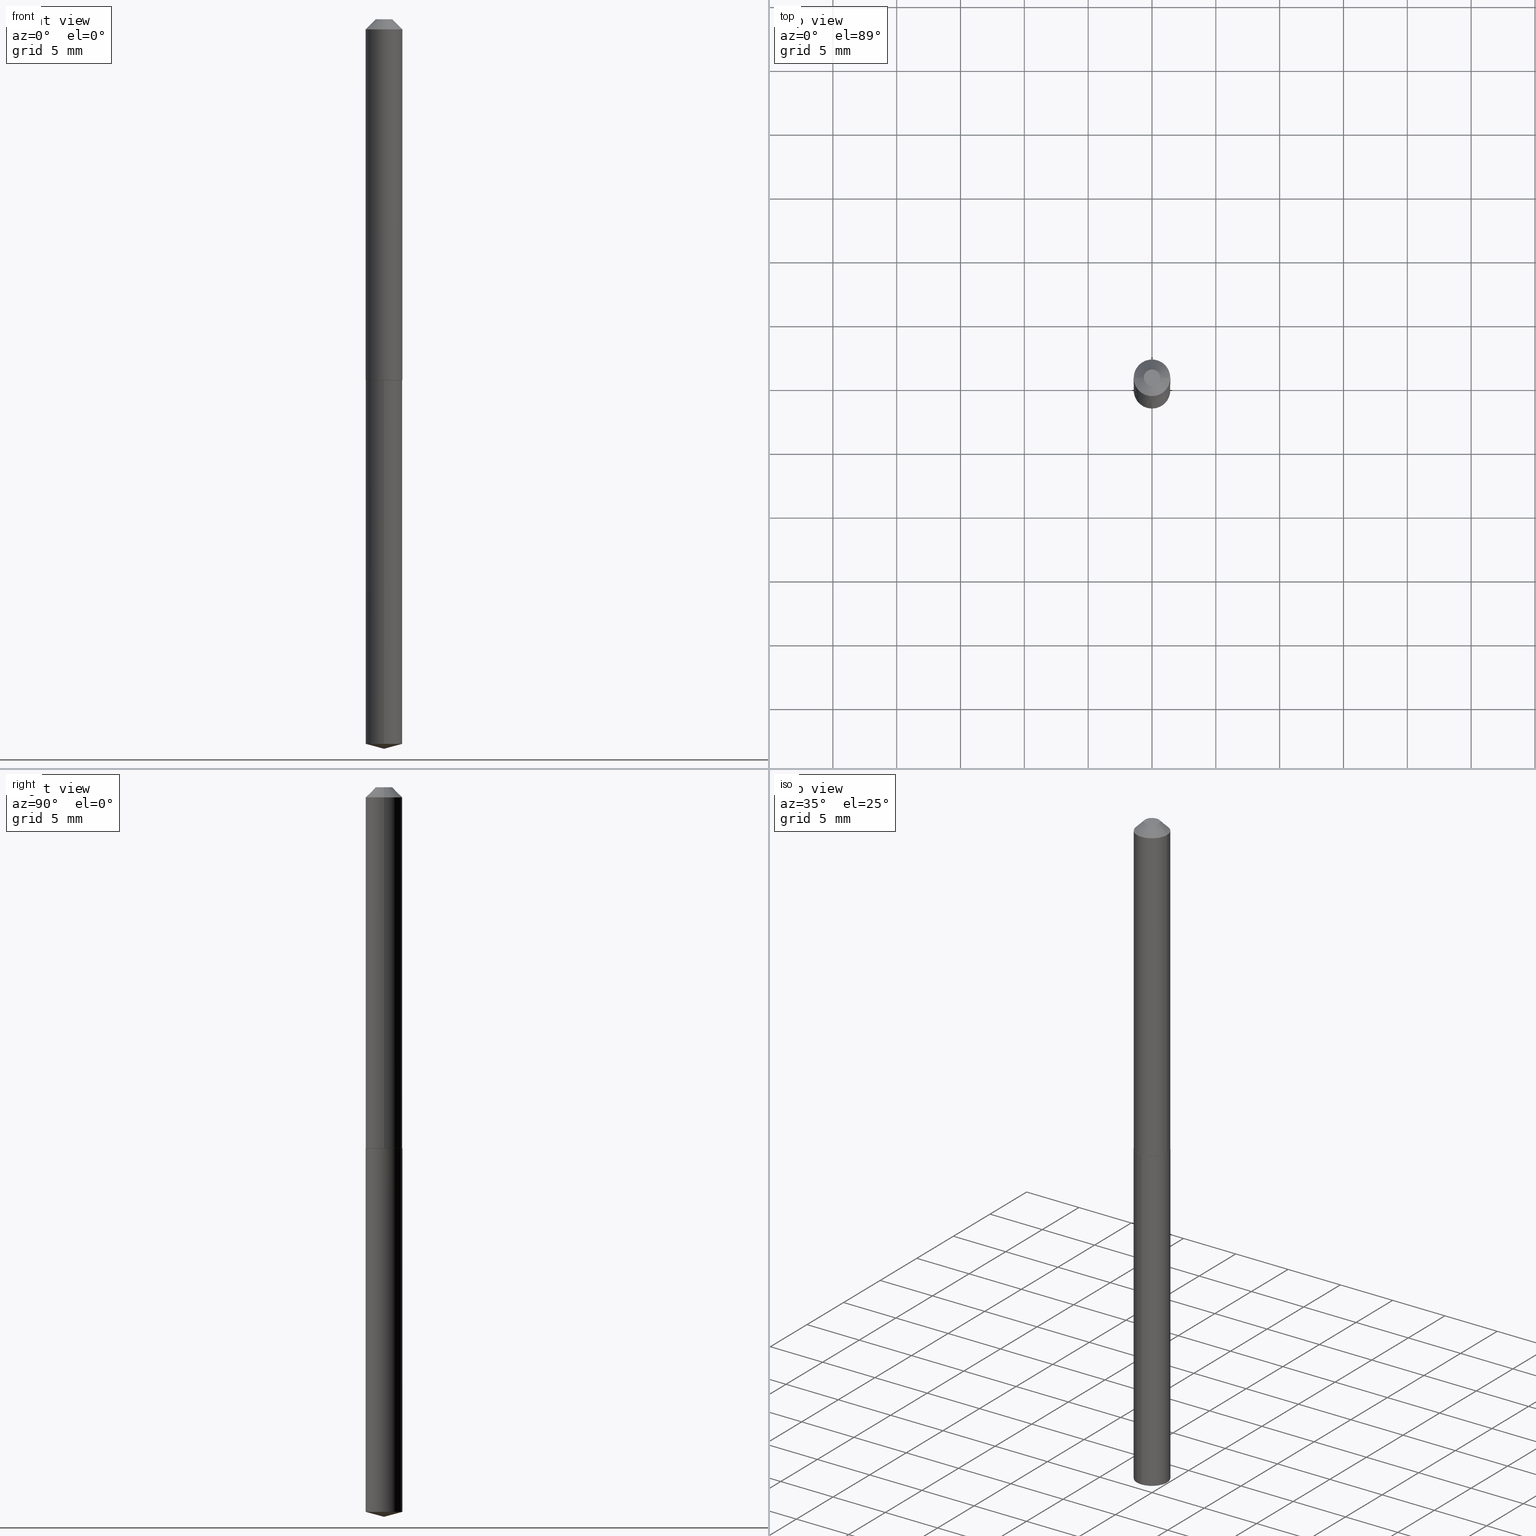
[diagram: canonical four-view strip — front | top / right | iso, engineering-drawing reading convention]
A machine part, canonical four-view strip (front | top / right | iso — engineering-drawing reading convention). The complete STEP part file that produces these views, byte-faithful:
ISO-10303-21;
HEADER;
FILE_DESCRIPTION (( 'STEP AP203' ),
    '1' );
FILE_NAME ('53033.STEP',
    '2024-04-22T19:03:35',
    ( '' ),
    ( '' ),
    'SwSTEP 2.0',
    'SolidWorks 2023',
    '' );
FILE_SCHEMA (( 'CONFIG_CONTROL_DESIGN' ));
ENDSEC;

DATA;
#1 = DIRECTION ( 'NONE',  ( 1.000000000000000000, -6.982962677686265922E-15, 0.000000000000000000 ) ) ;
#2 = VECTOR ( 'NONE', #298, 39.37007874015748143 ) ;
#3 = ORIENTED_EDGE ( 'NONE', *, *, #121, .F. ) ;
#4 = EDGE_CURVE ( 'NONE', #250, #380, #191, .T. ) ;
#5 = PERSON_AND_ORGANIZATION_ROLE ( 'design_owner' ) ;
#6 = ORIENTED_EDGE ( 'NONE', *, *, #355, .T. ) ;
#7 = AXIS2_PLACEMENT_3D ( 'NONE', #257, #201, #376 ) ;
#8 = CIRCLE ( 'NONE', #133, 0.05600000000000002892 ) ;
#9 = DIRECTION ( 'NONE',  ( -2.445468806185136597E-29, 3.491481338843145583E-15, 1.000000000000000000 ) ) ;
#10 = CARTESIAN_POINT ( 'NONE',  ( 7.642090019328602662E-31, -1.091087918388490267E-16, -0.03125000000000020817 ) ) ;
#11 = CC_DESIGN_DATE_AND_TIME_ASSIGNMENT ( #239, #315, ( #313 ) ) ;
#12 = ORIENTED_EDGE ( 'NONE', *, *, #179, .F. ) ;
#13 = DIRECTION ( 'NONE',  ( -2.445478652372085799E-29, 3.491467238543024018E-15, 1.000000000000000000 ) ) ;
#14 = DIRECTION ( 'NONE',  ( 1.000000000000000000, 0.000000000000000000, 0.000000000000000000 ) ) ;
#15 = VECTOR ( 'NONE', #110, 39.37007874015748143 ) ;
#16 = ORIENTED_EDGE ( 'NONE', *, *, #93, .T. ) ;
#17 = EDGE_CURVE ( 'NONE', #155, #45, #329, .T. ) ;
#18 = APPROVAL_DATE_TIME ( #84, #162 ) ;
#19 = ORIENTED_EDGE ( 'NONE', *, *, #17, .F. ) ;
#20 = APPROVAL_STATUS ( 'not_yet_approved' ) ;
#21 = DIRECTION ( 'NONE',  ( -2.438088387897960049E-29, 3.491481338843145188E-15, 1.000000000000000000 ) ) ;
#22 = AXIS2_PLACEMENT_3D ( 'NONE', #56, #86, #206 ) ;
#23 = ORIENTED_EDGE ( 'NONE', *, *, #324, .F. ) ;
#24 = DIRECTION ( 'NONE',  ( -2.445468806185136597E-29, 3.491481338843145583E-15, 1.000000000000000000 ) ) ;
#25 = EDGE_CURVE ( 'NONE', #330, #221, #259, .T. ) ;
#26 = MANIFOLD_SOLID_BREP ( 'Body-Move/Copy2[1]', #125 ) ;
#27 = DIRECTION ( 'NONE',  ( 1.000000000000000000, -6.982962677686265133E-15, 0.000000000000000000 ) ) ;
#28 = CYLINDRICAL_SURFACE ( 'NONE', #364, 0.05650000000000000161 ) ;
#29 = CC_DESIGN_PERSON_AND_ORGANIZATION_ASSIGNMENT ( #80, #106, ( #313 ) ) ;
#30 = FACE_OUTER_BOUND ( 'NONE', #249, .T. ) ;
#31 = EDGE_CURVE ( 'NONE', #330, #250, #168, .T. ) ;
#32 = ORIENTED_EDGE ( 'NONE', *, *, #111, .F. ) ;
#33 = EDGE_LOOP ( 'NONE', ( #365, #23 ) ) ;
#34 = DIRECTION ( 'NONE',  ( -1.000000000000000000, 6.982962677686265922E-15, 0.000000000000000000 ) ) ;
#35 = ORIENTED_EDGE ( 'NONE', *, *, #355, .F. ) ;
#36 = PERSON ( 'UNSPECIFIED', 'UNSPECIFIED', 'UNSPECIFIED', ('UNSPECIFIED'), ('UNSPECIFIED'), ('UNSPECIFIED') ) ;
#37 = DIRECTION ( 'NONE',  ( 0.000000000000000000, 0.000000000000000000, 1.000000000000000000 ) ) ;
#38 = VERTEX_POINT ( 'NONE', #344 ) ;
#39 = APPROVAL_PERSON_ORGANIZATION ( #333, #162, #184 ) ;
#40 = DIRECTION ( 'NONE',  ( -2.445478652372085799E-29, 3.491467238543024018E-15, 1.000000000000000000 ) ) ;
#41 = EDGE_CURVE ( 'NONE', #94, #45, #75, .T. ) ;
#42 = ORIENTED_EDGE ( 'NONE', *, *, #189, .T. ) ;
#43 =( NAMED_UNIT ( * ) SI_UNIT ( $, .STERADIAN. ) SOLID_ANGLE_UNIT ( ) );
#44 = FACE_OUTER_BOUND ( 'NONE', #160, .T. ) ;
#45 = VERTEX_POINT ( 'NONE', #105 ) ;
#46 = ADVANCED_FACE ( 'NONE', ( #44 ), #165, .F. ) ;
#47 = DIRECTION ( 'NONE',  ( -6.982962677686265922E-15, -1.000000000000000000, 2.417564596163064711E-15 ) ) ;
#48 = COORDINATED_UNIVERSAL_TIME_OFFSET ( 5, 0, .BEHIND. ) ;
#49 = ORIENTED_EDGE ( 'NONE', *, *, #57, .F. ) ;
#50 = ORIENTED_EDGE ( 'NONE', *, *, #207, .T. ) ;
#51 = DATE_AND_TIME ( #326, #363 ) ;
#52 = ADVANCED_FACE ( 'NONE', ( #225 ), #134, .T. ) ;
#53 = APPROVAL_PERSON_ORGANIZATION ( #169, #349, #200 ) ;
#54 = FACE_OUTER_BOUND ( 'NONE', #64, .T. ) ;
#55 = FACE_OUTER_BOUND ( 'NONE', #258, .T. ) ;
#56 = CARTESIAN_POINT ( 'NONE',  ( 4.492253318864007917E-48, -6.413747168845486278E-34, -1.836970198721037058E-19 ) ) ;
#57 = EDGE_CURVE ( 'NONE', #250, #342, #321, .T. ) ;
#58 = DIRECTION ( 'NONE',  ( 2.445468806185136597E-29, -3.491481338843145583E-15, -1.000000000000000000 ) ) ;
#59 = EDGE_LOOP ( 'NONE', ( #229, #214, #12, #280 ) ) ;
#60 = AXIS2_PLACEMENT_3D ( 'NONE', #296, #182, #173 ) ;
#61 = DIRECTION ( 'NONE',  ( 6.982962677686265922E-15, 1.000000000000000000, -3.491467238543024018E-15 ) ) ;
#62 = VERTEX_POINT ( 'NONE', #79 ) ;
#63 = APPROVAL_STATUS ( 'not_yet_approved' ) ;
#64 = EDGE_LOOP ( 'NONE', ( #42, #195 ) ) ;
#65 = PRODUCT_DEFINITION ( 'UNKNOWN', '', #305, #341 ) ;
#66 = DIRECTION ( 'NONE',  ( 0.7071067811865451302, -7.319954787623248157E-15, -0.7071067811865499042 ) ) ;
#67 = ORIENTED_EDGE ( 'NONE', *, *, #332, .F. ) ;
#68 = VECTOR ( 'NONE', #142, 39.37007874015748143 ) ;
#69 = CARTESIAN_POINT ( 'NONE',  ( 2.720584046880964240E-29, -3.884272989462999268E-15, -1.112500000000000044 ) ) ;
#70 = FACE_OUTER_BOUND ( 'NONE', #33, .T. ) ;
#71 = DIRECTION ( 'NONE',  ( 1.000000000000000000, -6.982962677686265133E-15, 0.000000000000000000 ) ) ;
#72 = EDGE_CURVE ( 'NONE', #302, #62, #100, .T. ) ;
#73 = ORIENTED_EDGE ( 'NONE', *, *, #41, .F. ) ;
#74 = FACE_OUTER_BOUND ( 'NONE', #99, .T. ) ;
#75 = LINE ( 'NONE', #351, #68 ) ;
#76 = AXIS2_PLACEMENT_3D ( 'NONE', #281, #13, #252 ) ;
#77 = PERSON_AND_ORGANIZATION_ROLE ( 'creator' ) ;
#78 = LOCAL_TIME ( 15, 3, 35.00000000000000000, #230 ) ;
#79 = CARTESIAN_POINT ( 'NONE',  ( 4.014566457045111465E-16, 0.05649999999999218842, -2.234860870627642271 ) ) ;
#80 = PERSON_AND_ORGANIZATION ( #36, #92 ) ;
#81 = CARTESIAN_POINT ( 'NONE',  ( 2.720584046880964240E-29, -3.884272989462999268E-15, -1.112500000000000044 ) ) ;
#82 = CC_DESIGN_PERSON_AND_ORGANIZATION_ASSIGNMENT ( #323, #345, ( #65 ) ) ;
#83 = DIRECTION ( 'NONE',  ( -2.445478652372085799E-29, 3.491467238543024018E-15, 1.000000000000000000 ) ) ;
#84 = DATE_AND_TIME ( #294, #322 ) ;
#85 = CONICAL_SURFACE ( 'NONE', #300, 0.05650000000000000161, 0.7853981633974449483 ) ;
#86 = DIRECTION ( 'NONE',  ( -2.445468806185136597E-29, 3.491481338843145583E-15, 1.000000000000000000 ) ) ;
#87 = ADVANCED_FACE ( 'NONE', ( #70 ), #289, .F. ) ;
#88 = LINE ( 'NONE', #295, #245 ) ;
#89 = DIRECTION ( 'NONE',  ( -2.445478652372085799E-29, 3.491467238543024018E-15, 1.000000000000000000 ) ) ;
#90 = FACE_OUTER_BOUND ( 'NONE', #217, .T. ) ;
#91 = CONICAL_SURFACE ( 'NONE', #108, 0.05650000000000013345, 0.7853981633976532262 ) ;
#92 = ORGANIZATION ( 'UNSPECIFIED', 'UNSPECIFIED', '' ) ;
#93 = EDGE_CURVE ( 'NONE', #62, #94, #251, .T. ) ;
#94 = VERTEX_POINT ( 'NONE', #104 ) ;
#95 = LOCAL_TIME ( 15, 3, 35.00000000000000000, #48 ) ;
#96 = APPLICATION_PROTOCOL_DEFINITION ( 'international standard', 'config_control_design', 1994, #374 ) ;
#97 = ORIENTED_EDGE ( 'NONE', *, *, #248, .F. ) ;
#98 = CARTESIAN_POINT ( 'NONE',  ( 7.642090019328602662E-31, -1.091087918388490267E-16, -0.03125000000000020817 ) ) ;
#99 = EDGE_LOOP ( 'NONE', ( #299, #50, #303 ) ) ;
#100 = LINE ( 'NONE', #199, #158 ) ;
#101 = CIRCLE ( 'NONE', #212, 0.05650000000000000161 ) ;
#102 = PERSON_AND_ORGANIZATION ( #36, #92 ) ;
#103 = APPLICATION_CONTEXT ( 'configuration controlled 3d designs of mechanical parts and assemblies' ) ;
#104 = CARTESIAN_POINT ( 'NONE',  ( -3.945373912892193281E-16, -0.05650000000000779399, -2.234860870627641827 ) ) ;
#105 = CARTESIAN_POINT ( 'NONE',  ( -3.945373912892467903E-16, -0.05650000000000388045, -1.112999999999999767 ) ) ;
#106 = PERSON_AND_ORGANIZATION_ROLE ( 'classification_officer' ) ;
#107 = DIRECTION ( 'NONE',  ( -2.445468806185136597E-29, 3.491481338843145583E-15, 1.000000000000000000 ) ) ;
#108 = AXIS2_PLACEMENT_3D ( 'NONE', #241, #208, #268 ) ;
#109 = PERSON_AND_ORGANIZATION ( #36, #92 ) ;
#110 = DIRECTION ( 'NONE',  ( -2.445468806185136877E-29, 3.491481338843145188E-15, 1.000000000000000000 ) ) ;
#111 = EDGE_CURVE ( 'NONE', #342, #370, #353, .T. ) ;
#112 = CARTESIAN_POINT ( 'NONE',  ( -0.05650000000000000161, 2.854285994504250533E-16, -0.03125000000000020817 ) ) ;
#113 = CARTESIAN_POINT ( 'NONE',  ( 5.465293591335518507E-29, -7.802959206132187600E-15, -2.234860870627641827 ) ) ;
#114 = CALENDAR_DATE ( 2024, 22, 4 ) ;
#115 = ADVANCED_FACE ( 'NONE', ( #54 ), #117, .F. ) ;
#116 = CC_DESIGN_SECURITY_CLASSIFICATION ( #313, ( #305 ) ) ;
#117 = PLANE ( 'NONE',  #284 ) ;
#118 = CYLINDRICAL_SURFACE ( 'NONE', #381, 0.05650000000000006406 ) ;
#119 = CARTESIAN_POINT ( 'NONE',  ( 7.642090019328602662E-31, -1.091087918388490267E-16, -0.03125000000000020817 ) ) ;
#120 = AXIS2_PLACEMENT_3D ( 'NONE', #69, #9, #71 ) ;
#121 = EDGE_CURVE ( 'NONE', #312, #370, #388, .T. ) ;
#122 = ORIENTED_EDGE ( 'NONE', *, *, #324, .T. ) ;
#123 = ORIENTED_EDGE ( 'NONE', *, *, #179, .T. ) ;
#124 = CARTESIAN_POINT ( 'NONE',  ( 5.502326967837193257E-29, -7.855801286721804237E-15, -2.250000000000000000 ) ) ;
#125 = CLOSED_SHELL ( 'NONE', ( #172, #138, #386, #291, #115 ) ) ;
#126 = CONICAL_SURFACE ( 'NONE', #389, 0.05650000000000000161, 0.7853981633974449483 ) ;
#127 = DIRECTION ( 'NONE',  ( 2.445468806185136597E-29, -3.491481338843145583E-15, -1.000000000000000000 ) ) ;
#128 = ORIENTED_EDGE ( 'NONE', *, *, #248, .T. ) ;
#129 = CYLINDRICAL_SURFACE ( 'NONE', #150, 0.05650000000000000161 ) ;
#130 = ORIENTED_EDGE ( 'NONE', *, *, #205, .F. ) ;
#131 = CARTESIAN_POINT ( 'NONE',  ( 2.246126659432003959E-48, -3.206873584422743139E-34, -9.184850993605185290E-20 ) ) ;
#132 = PRODUCT_RELATED_PRODUCT_CATEGORY ( 'detail', '', ( #181 ) ) ;
#133 = AXIS2_PLACEMENT_3D ( 'NONE', #371, #228, #161 ) ;
#134 = CYLINDRICAL_SURFACE ( 'NONE', #307, 0.05650000000000006406 ) ;
#135 = CALENDAR_DATE ( 2024, 22, 4 ) ;
#136 = CARTESIAN_POINT ( 'NONE',  ( 0.000000000000000000, 0.000000000000000000, 0.000000000000000000 ) ) ;
#137 = SHAPE_DEFINITION_REPRESENTATION ( #190, #197 ) ;
#138 = ADVANCED_FACE ( 'NONE', ( #331 ), #238, .T. ) ;
#139 = ORIENTED_EDGE ( 'NONE', *, *, #317, .T. ) ;
#140 = AXIS2_PLACEMENT_3D ( 'NONE', #81, #231, #348 ) ;
#141 = VECTOR ( 'NONE', #175, 39.37007874015748854 ) ;
#142 = DIRECTION ( 'NONE',  ( -2.445478652372085799E-29, 3.491467238543024018E-15, 1.000000000000000000 ) ) ;
#143 = DIRECTION ( 'NONE',  ( -6.745023994389850177E-15, -0.9659258262890693114, 0.2588190451025172423 ) ) ;
#144 = EDGE_CURVE ( 'NONE', #221, #342, #384, .T. ) ;
#145 = CARTESIAN_POINT ( 'NONE',  ( 2.721806781284057041E-29, -3.886018730132420772E-15, -1.112999999999999989 ) ) ;
#146 = DIRECTION ( 'NONE',  ( -2.445468806185136597E-29, 3.491481338843145583E-15, 1.000000000000000000 ) ) ;
#147 = DIRECTION ( 'NONE',  ( -6.982962677686265922E-15, -1.000000000000000000, 2.417564596163064711E-15 ) ) ;
#148 = ADVANCED_FACE ( 'NONE', ( #55 ), #383, .T. ) ;
#149 = CIRCLE ( 'NONE', #22, 0.02524999999999999814 ) ;
#150 = AXIS2_PLACEMENT_3D ( 'NONE', #340, #40, #276 ) ;
#151 = MANIFOLD_SOLID_BREP ( 'Body-Move/Copy2[2]', #357 ) ;
#152 = ORIENTED_EDGE ( 'NONE', *, *, #25, .T. ) ;
#153 = CC_DESIGN_PERSON_AND_ORGANIZATION_ASSIGNMENT ( #233, #350, ( #305 ) ) ;
#154 = DIRECTION ( 'NONE',  ( -2.445468806185136597E-29, 3.491481338843145583E-15, 1.000000000000000000 ) ) ;
#155 = VERTEX_POINT ( 'NONE', #177 ) ;
#156 = LINE ( 'NONE', #185, #266 ) ;
#157 = CIRCLE ( 'NONE', #362, 0.05650000000000000161 ) ;
#158 = VECTOR ( 'NONE', #255, 39.37007874015748854 ) ;
#159 = FACE_OUTER_BOUND ( 'NONE', #187, .T. ) ;
#160 = EDGE_LOOP ( 'NONE', ( #183, #382 ) ) ;
#161 = DIRECTION ( 'NONE',  ( 1.000000000000000000, -6.982962677686268288E-15, 0.000000000000000000 ) ) ;
#162 = APPROVAL ( #63, 'UNSPECIFIED' ) ;
#163 = DIRECTION ( 'NONE',  ( -2.445478652372085799E-29, 3.491467238543024018E-15, 1.000000000000000000 ) ) ;
#164 = CARTESIAN_POINT ( 'NONE',  ( -9.077637109223210617E-28, 1.296035231197632230E-13, 37.12007874015748143 ) ) ;
#165 = PLANE ( 'NONE',  #232 ) ;
#166 = CIRCLE ( 'NONE', #120, 0.05650000000000013345 ) ;
#167 = AXIS2_PLACEMENT_3D ( 'NONE', #164, #283, #218 ) ;
#168 = LINE ( 'NONE', #261, #186 ) ;
#169 = PERSON_AND_ORGANIZATION ( #36, #92 ) ;
#170 = DIRECTION ( 'NONE',  ( -1.000000000000000000, 6.982962677686265922E-15, -4.876176775795935793E-29 ) ) ;
#171 = CARTESIAN_POINT ( 'NONE',  ( 2.721806781284057041E-29, -3.886018730132420772E-15, -1.112999999999999989 ) ) ;
#172 = ADVANCED_FACE ( 'NONE', ( #30 ), #28, .T. ) ;
#173 = DIRECTION ( 'NONE',  ( -6.982962677686268288E-15, -1.000000000000000000, 3.510303681827540642E-15 ) ) ;
#174 = CARTESIAN_POINT ( 'NONE',  ( -0.05600000000000002892, -3.485465570932653113E-15, -1.112999999999999767 ) ) ;
#175 = DIRECTION ( 'NONE',  ( -0.7071067811866923458, 7.493145998870876386E-15, 0.7071067811864025776 ) ) ;
#176 = AXIS2_PLACEMENT_3D ( 'NONE', #119, #146, #1 ) ;
#177 = CARTESIAN_POINT ( 'NONE',  ( 4.014566457045113930E-16, 0.05649999999999611583, -1.113000000000000211 ) ) ;
#178 = CC_DESIGN_PERSON_AND_ORGANIZATION_ASSIGNMENT ( #102, #5, ( #181 ) ) ;
#179 = EDGE_CURVE ( 'NONE', #380, #370, #188, .T. ) ;
#180 = EDGE_LOOP ( 'NONE', ( #152, #306, #49, #274 ) ) ;
#181 = PRODUCT ( '53033', '53033', '', ( #343 ) ) ;
#182 = DIRECTION ( 'NONE',  ( -2.445478652372085799E-29, 3.491467238543024018E-15, 1.000000000000000000 ) ) ;
#183 = ORIENTED_EDGE ( 'NONE', *, *, #205, .T. ) ;
#184 = APPROVAL_ROLE ( '' ) ;
#185 = CARTESIAN_POINT ( 'NONE',  ( 0.05650000000000000161, -4.967269287129405456E-16, -0.03125000000000020817 ) ) ;
#186 = VECTOR ( 'NONE', #316, 39.37007874015748854 ) ;
#187 = EDGE_LOOP ( 'NONE', ( #227, #6, #123, #3 ) ) ;
#188 = CIRCLE ( 'NONE', #176, 0.05650000000000000161 ) ;
#189 = EDGE_CURVE ( 'NONE', #45, #155, #101, .T. ) ;
#190 = PRODUCT_DEFINITION_SHAPE ( 'NONE', 'NONE',  #65 ) ;
#191 = LINE ( 'NONE', #292, #15 ) ;
#192 = CARTESIAN_POINT ( 'NONE',  ( -0.05650000000000000161, -1.595234244946466237E-15, -0.03125000000000020817 ) ) ;
#193 = EDGE_LOOP ( 'NONE', ( #32, #139, #278, #67 ) ) ;
#194 = DIRECTION ( 'NONE',  ( -1.000000000000000000, 6.982962677686265922E-15, 0.000000000000000000 ) ) ;
#195 = ORIENTED_EDGE ( 'NONE', *, *, #17, .T. ) ;
#196 = AXIS2_PLACEMENT_3D ( 'NONE', #98, #220, #335 ) ;
#197 = ADVANCED_BREP_SHAPE_REPRESENTATION ( '53033', ( #26, #151, #226 ), #211 ) ;
#198 = DATE_AND_TIME ( #203, #95 ) ;
#199 = CARTESIAN_POINT ( 'NONE',  ( 5.502327160028780886E-29, -7.855801286721804237E-15, -2.250000000000000000 ) ) ;
#200 = APPROVAL_ROLE ( '' ) ;
#201 = DIRECTION ( 'NONE',  ( -2.445468806185136597E-29, 3.491481338843145583E-15, 1.000000000000000000 ) ) ;
#202 = CARTESIAN_POINT ( 'NONE',  ( 4.492253318864007917E-48, -6.413747168845486278E-34, -1.836970198721037058E-19 ) ) ;
#203 = CALENDAR_DATE ( 2024, 22, 4 ) ;
#204 = CC_DESIGN_APPROVAL ( #349, ( #313 ) ) ;
#205 = EDGE_CURVE ( 'NONE', #312, #38, #270, .T. ) ;
#206 = DIRECTION ( 'NONE',  ( 1.000000000000000000, -6.982962677686267499E-15, 4.876126886781362715E-29 ) ) ;
#207 = EDGE_CURVE ( 'NONE', #302, #94, #88, .T. ) ;
#208 = DIRECTION ( 'NONE',  ( -2.445468806185136597E-29, 3.491481338843145583E-15, 1.000000000000000000 ) ) ;
#209 = CARTESIAN_POINT ( 'NONE',  ( 7.642090019328602662E-31, -1.091087918388490267E-16, -0.03125000000000020817 ) ) ;
#210 = AXIS2_PLACEMENT_3D ( 'NONE', #301, #235, #27 ) ;
#211 =( GEOMETRIC_REPRESENTATION_CONTEXT ( 3 ) GLOBAL_UNCERTAINTY_ASSIGNED_CONTEXT ( ( #309 ) ) GLOBAL_UNIT_ASSIGNED_CONTEXT ( ( #308, #279, #43 ) ) REPRESENTATION_CONTEXT ( 'NONE', 'WORKASPACE' ) );
#212 = AXIS2_PLACEMENT_3D ( 'NONE', #358, #215, #390 ) ;
#213 = EDGE_LOOP ( 'NONE', ( #336, #16, #372, #19 ) ) ;
#214 = ORIENTED_EDGE ( 'NONE', *, *, #111, .T. ) ;
#215 = DIRECTION ( 'NONE',  ( -2.445478652372085799E-29, 3.491467238543024018E-15, 1.000000000000000000 ) ) ;
#216 = CIRCLE ( 'NONE', #196, 0.05650000000000000161 ) ;
#217 = EDGE_LOOP ( 'NONE', ( #35, #130, #272, #334 ) ) ;
#218 = DIRECTION ( 'NONE',  ( -6.982962677686268288E-15, -1.000000000000000000, 3.510303681827540642E-15 ) ) ;
#219 = ORIENTED_EDGE ( 'NONE', *, *, #31, .T. ) ;
#220 = DIRECTION ( 'NONE',  ( -2.445468806185136597E-29, 3.491481338843145583E-15, 1.000000000000000000 ) ) ;
#221 = VERTEX_POINT ( 'NONE', #174 ) ;
#222 = ADVANCED_FACE ( 'NONE', ( #263 ), #91, .T. ) ;
#223 = FACE_OUTER_BOUND ( 'NONE', #213, .T. ) ;
#224 = AXIS2_PLACEMENT_3D ( 'NONE', #202, #24, #328 ) ;
#225 = FACE_OUTER_BOUND ( 'NONE', #193, .T. ) ;
#226 = AXIS2_PLACEMENT_3D ( 'NONE', #369, #37, #14 ) ;
#227 = ORIENTED_EDGE ( 'NONE', *, *, #253, .F. ) ;
#228 = DIRECTION ( 'NONE',  ( -2.445468806185136597E-29, 3.491481338843145583E-15, 1.000000000000000000 ) ) ;
#229 = ORIENTED_EDGE ( 'NONE', *, *, #57, .T. ) ;
#230 = COORDINATED_UNIVERSAL_TIME_OFFSET ( 5, 0, .BEHIND. ) ;
#231 = DIRECTION ( 'NONE',  ( -2.445468806185136597E-29, 3.491481338843145583E-15, 1.000000000000000000 ) ) ;
#232 = AXIS2_PLACEMENT_3D ( 'NONE', #131, #234, #170 ) ;
#233 = PERSON_AND_ORGANIZATION ( #36, #92 ) ;
#234 = DIRECTION ( 'NONE',  ( 2.438088387897960049E-29, -3.491481338843145188E-15, -1.000000000000000000 ) ) ;
#235 = DIRECTION ( 'NONE',  ( -2.445468806185136597E-29, 3.491481338843145583E-15, 1.000000000000000000 ) ) ;
#236 = ADVANCED_FACE ( 'NONE', ( #242 ), #118, .T. ) ;
#237 = DIRECTION ( 'NONE',  ( -2.445478652372085799E-29, 3.491467238543024018E-15, 1.000000000000000000 ) ) ;
#238 = CONICAL_SURFACE ( 'NONE', #60, 146.9311341562591906, 1.308996938995754311 ) ;
#239 = DATE_AND_TIME ( #114, #260 ) ;
#240 = DIRECTION ( 'NONE',  ( -2.445468806185136877E-29, 3.491481338843145188E-15, 1.000000000000000000 ) ) ;
#241 = CARTESIAN_POINT ( 'NONE',  ( 2.720584046880964240E-29, -3.884272989462999268E-15, -1.112500000000000044 ) ) ;
#242 = FACE_OUTER_BOUND ( 'NONE', #59, .T. ) ;
#243 = CONICAL_SURFACE ( 'NONE', #167, 146.9311341562591906, 1.308996938995754311 ) ;
#244 = CARTESIAN_POINT ( 'NONE',  ( -0.05650000000000013345, -3.482816343758541518E-15, -1.112500000000000044 ) ) ;
#245 = VECTOR ( 'NONE', #143, 39.37007874015748854 ) ;
#246 = ORIENTED_EDGE ( 'NONE', *, *, #207, .F. ) ;
#247 = CARTESIAN_POINT ( 'NONE',  ( -0.02524999999999999814, 2.308742035310016370E-16, -1.836970198735272810E-19 ) ) ;
#248 = EDGE_CURVE ( 'NONE', #94, #62, #157, .T. ) ;
#249 = EDGE_LOOP ( 'NONE', ( #128, #368, #275, #73 ) ) ;
#250 = VERTEX_POINT ( 'NONE', #356 ) ;
#251 = CIRCLE ( 'NONE', #76, 0.05650000000000000161 ) ;
#252 = DIRECTION ( 'NONE',  ( -6.982962677686265922E-15, -1.000000000000000000, 4.835129192326129423E-15 ) ) ;
#253 = EDGE_CURVE ( 'NONE', #38, #312, #149, .T. ) ;
#254 = CARTESIAN_POINT ( 'NONE',  ( 0.05650000000000000161, -5.036461831281230081E-16, -0.03125000000000020817 ) ) ;
#255 = DIRECTION ( 'NONE',  ( 6.863315791527704515E-15, 0.9659258262890710878, 0.2588190451025105254 ) ) ;
#256 = DATE_TIME_ROLE ( 'creation_date' ) ;
#257 = CARTESIAN_POINT ( 'NONE',  ( 2.721806781284056481E-29, -3.886018730132420772E-15, -1.112999999999999767 ) ) ;
#258 = EDGE_LOOP ( 'NONE', ( #314, #122, #219, #287 ) ) ;
#259 = CIRCLE ( 'NONE', #7, 0.05600000000000002892 ) ;
#260 = LOCAL_TIME ( 15, 3, 35.00000000000000000, #379 ) ;
#261 = CARTESIAN_POINT ( 'NONE',  ( 0.05650000000000013345, -4.278810380752274063E-15, -1.112500000000000044 ) ) ;
#262 = COORDINATED_UNIVERSAL_TIME_OFFSET ( 5, 0, .BEHIND. ) ;
#263 = FACE_OUTER_BOUND ( 'NONE', #180, .T. ) ;
#264 = APPROVAL_ROLE ( '' ) ;
#265 = CARTESIAN_POINT ( 'NONE',  ( 2.721806781284057041E-29, -3.886018730132420772E-15, -1.112999999999999989 ) ) ;
#266 = VECTOR ( 'NONE', #66, 39.37007874015748143 ) ;
#267 = EDGE_CURVE ( 'NONE', #62, #155, #325, .T. ) ;
#268 = DIRECTION ( 'NONE',  ( 1.000000000000000000, -6.982962677686265133E-15, 0.000000000000000000 ) ) ;
#269 = CARTESIAN_POINT ( 'NONE',  ( -0.05650000000000013345, -3.482816343758541518E-15, -1.112500000000000044 ) ) ;
#270 = CIRCLE ( 'NONE', #224, 0.02524999999999999814 ) ;
#271 = APPROVAL_PERSON_ORGANIZATION ( #109, #373, #264 ) ;
#272 = ORIENTED_EDGE ( 'NONE', *, *, #121, .T. ) ;
#273 = ADVANCED_FACE ( 'NONE', ( #90 ), #126, .T. ) ;
#274 = ORIENTED_EDGE ( 'NONE', *, *, #31, .F. ) ;
#275 = ORIENTED_EDGE ( 'NONE', *, *, #189, .F. ) ;
#276 = DIRECTION ( 'NONE',  ( -6.982962677686265922E-15, -1.000000000000000000, 2.417564596163064711E-15 ) ) ;
#277 = CC_DESIGN_APPROVAL ( #162, ( #65 ) ) ;
#278 = ORIENTED_EDGE ( 'NONE', *, *, #4, .T. ) ;
#279 =( NAMED_UNIT ( * ) PLANE_ANGLE_UNIT ( ) SI_UNIT ( $, .RADIAN. ) );
#280 = ORIENTED_EDGE ( 'NONE', *, *, #4, .F. ) ;
#281 = CARTESIAN_POINT ( 'NONE',  ( 5.465293591335518507E-29, -7.802959206132187600E-15, -2.234860870627641827 ) ) ;
#282 = ADVANCED_FACE ( 'NONE', ( #159 ), #85, .T. ) ;
#283 = DIRECTION ( 'NONE',  ( -2.445478652372085799E-29, 3.491467238543024018E-15, 1.000000000000000000 ) ) ;
#284 = AXIS2_PLACEMENT_3D ( 'NONE', #265, #320, #61 ) ;
#285 = EDGE_LOOP ( 'NONE', ( #246, #378, #97 ) ) ;
#286 = COORDINATED_UNIVERSAL_TIME_OFFSET ( 5, 0, .BEHIND. ) ;
#287 = ORIENTED_EDGE ( 'NONE', *, *, #317, .F. ) ;
#288 = SECURITY_CLASSIFICATION_LEVEL ( 'unclassified' ) ;
#289 = PLANE ( 'NONE',  #375 ) ;
#290 = PERSON_AND_ORGANIZATION ( #36, #92 ) ;
#291 = ADVANCED_FACE ( 'NONE', ( #223 ), #129, .T. ) ;
#292 = CARTESIAN_POINT ( 'NONE',  ( 0.05650000000000006406, -3.945373912892745484E-16, 2.755039878324706638E-30 ) ) ;
#293 = VECTOR ( 'NONE', #89, 39.37007874015748143 ) ;
#294 = CALENDAR_DATE ( 2024, 22, 4 ) ;
#295 = CARTESIAN_POINT ( 'NONE',  ( 5.502305050225044036E-29, -7.855832673989875452E-15, -2.250000000000000000 ) ) ;
#296 = CARTESIAN_POINT ( 'NONE',  ( -9.077637109223210617E-28, 1.296035231197632230E-13, 37.12007874015748143 ) ) ;
#297 = CARTESIAN_POINT ( 'NONE',  ( -0.05650000000000006406, 4.014566457044570602E-16, -2.779198325994025135E-30 ) ) ;
#298 = DIRECTION ( 'NONE',  ( -0.7071067811865451302, 2.468850131082231817E-15, -0.7071067811865499042 ) ) ;
#299 = ORIENTED_EDGE ( 'NONE', *, *, #72, .F. ) ;
#300 = AXIS2_PLACEMENT_3D ( 'NONE', #10, #127, #194 ) ;
#301 = CARTESIAN_POINT ( 'NONE',  ( 2.720584046880964240E-29, -3.884272989462999268E-15, -1.112500000000000044 ) ) ;
#302 = VERTEX_POINT ( 'NONE', #124 ) ;
#303 = ORIENTED_EDGE ( 'NONE', *, *, #93, .F. ) ;
#304 =( LENGTH_UNIT ( ) NAMED_UNIT ( * ) SI_UNIT ( $, .METRE. ) );
#305 = PRODUCT_DEFINITION_FORMATION_WITH_SPECIFIED_SOURCE ( 'ANY', '', #181, .NOT_KNOWN. ) ;
#306 = ORIENTED_EDGE ( 'NONE', *, *, #144, .T. ) ;
#307 = AXIS2_PLACEMENT_3D ( 'NONE', #136, #107, #339 ) ;
#308 =( CONVERSION_BASED_UNIT ( 'INCH', #311 ) LENGTH_UNIT ( ) NAMED_UNIT ( #366 ) );
#309 = UNCERTAINTY_MEASURE_WITH_UNIT (LENGTH_MEASURE( 1.000000000000000082E-05 ), #308, 'distance_accuracy_value', 'NONE');
#310 = DIRECTION ( 'NONE',  ( 1.000000000000000000, -6.982962677686265922E-15, 4.876176775795935793E-29 ) ) ;
#311 = LENGTH_MEASURE_WITH_UNIT ( LENGTH_MEASURE( 0.02539999999999999897 ), #304 );
#312 = VERTEX_POINT ( 'NONE', #247 ) ;
#313 = SECURITY_CLASSIFICATION ( '', '', #288 ) ;
#314 = ORIENTED_EDGE ( 'NONE', *, *, #144, .F. ) ;
#315 = DATE_TIME_ROLE ( 'classification_date' ) ;
#316 = DIRECTION ( 'NONE',  ( 0.7071067811866923458, -2.468850131083773646E-15, 0.7071067811864025776 ) ) ;
#317 = EDGE_CURVE ( 'NONE', #342, #250, #166, .T. ) ;
#318 = CARTESIAN_POINT ( 'NONE',  ( 2.721806781284056481E-29, -3.886018730132420772E-15, -1.112999999999999767 ) ) ;
#319 = APPROVAL_STATUS ( 'not_yet_approved' ) ;
#320 = DIRECTION ( 'NONE',  ( 2.445478652372085518E-29, -3.491467238543024018E-15, -1.000000000000000000 ) ) ;
#321 = CIRCLE ( 'NONE', #140, 0.05650000000000013345 ) ;
#322 = LOCAL_TIME ( 15, 3, 35.00000000000000000, #286 ) ;
#323 = PERSON_AND_ORGANIZATION ( #36, #92 ) ;
#324 = EDGE_CURVE ( 'NONE', #221, #330, #8, .T. ) ;
#325 = LINE ( 'NONE', #359, #293 ) ;
#326 = CALENDAR_DATE ( 2024, 22, 4 ) ;
#327 = DIRECTION ( 'NONE',  ( -6.982962677686265922E-15, -1.000000000000000000, 4.835129192326129423E-15 ) ) ;
#328 = DIRECTION ( 'NONE',  ( 1.000000000000000000, -6.982962677686267499E-15, 4.876126886781362715E-29 ) ) ;
#329 = CIRCLE ( 'NONE', #346, 0.05650000000000000161 ) ;
#330 = VERTEX_POINT ( 'NONE', #337 ) ;
#331 = FACE_OUTER_BOUND ( 'NONE', #285, .T. ) ;
#332 = EDGE_CURVE ( 'NONE', #370, #380, #216, .T. ) ;
#333 = PERSON_AND_ORGANIZATION ( #36, #92 ) ;
#334 = ORIENTED_EDGE ( 'NONE', *, *, #332, .T. ) ;
#335 = DIRECTION ( 'NONE',  ( 1.000000000000000000, -6.982962677686265922E-15, 0.000000000000000000 ) ) ;
#336 = ORIENTED_EDGE ( 'NONE', *, *, #267, .F. ) ;
#337 = CARTESIAN_POINT ( 'NONE',  ( 0.05600000000000002892, -4.277064640082851771E-15, -1.112999999999999767 ) ) ;
#338 = VECTOR ( 'NONE', #240, 39.37007874015748143 ) ;
#339 = DIRECTION ( 'NONE',  ( 1.000000000000000000, -6.982962677686267499E-15, 4.876176775795935232E-29 ) ) ;
#340 = CARTESIAN_POINT ( 'NONE',  ( 2.721806781284057041E-29, -3.886018730132420772E-15, -1.112999999999999989 ) ) ;
#341 = DESIGN_CONTEXT ( 'detailed design', #374, 'design' ) ;
#342 = VERTEX_POINT ( 'NONE', #244 ) ;
#343 = MECHANICAL_CONTEXT ( 'NONE', #103, 'mechanical' ) ;
#344 = CARTESIAN_POINT ( 'NONE',  ( 0.02524999999999999814, -3.349772515783358639E-16, -1.836970198703166595E-19 ) ) ;
#345 = PERSON_AND_ORGANIZATION_ROLE ( 'creator' ) ;
#346 = AXIS2_PLACEMENT_3D ( 'NONE', #171, #163, #47 ) ;
#347 = CC_DESIGN_APPROVAL ( #373, ( #305 ) ) ;
#348 = DIRECTION ( 'NONE',  ( 1.000000000000000000, -6.982962677686265133E-15, 0.000000000000000000 ) ) ;
#349 = APPROVAL ( #20, 'UNSPECIFIED' ) ;
#350 = PERSON_AND_ORGANIZATION_ROLE ( 'design_supplier' ) ;
#351 = CARTESIAN_POINT ( 'NONE',  ( -3.945373912892467903E-16, -0.05650000000000388045, -1.112999999999999767 ) ) ;
#352 = APPROVAL_DATE_TIME ( #51, #349 ) ;
#353 = LINE ( 'NONE', #297, #338 ) ;
#354 = DATE_AND_TIME ( #135, #78 ) ;
#355 = EDGE_CURVE ( 'NONE', #38, #380, #156, .T. ) ;
#356 = CARTESIAN_POINT ( 'NONE',  ( 0.05650000000000013345, -4.278810380752274063E-15, -1.112500000000000044 ) ) ;
#357 = CLOSED_SHELL ( 'NONE', ( #282, #236, #222, #87, #148, #52, #273, #46 ) ) ;
#358 = CARTESIAN_POINT ( 'NONE',  ( 2.721806781284057041E-29, -3.886018730132420772E-15, -1.112999999999999989 ) ) ;
#359 = CARTESIAN_POINT ( 'NONE',  ( 4.014566457044837829E-16, 0.05649999999999611583, -1.113000000000000211 ) ) ;
#360 = CARTESIAN_POINT ( 'NONE',  ( 0.000000000000000000, 0.000000000000000000, 0.000000000000000000 ) ) ;
#361 = CC_DESIGN_DATE_AND_TIME_ASSIGNMENT ( #354, #256, ( #65 ) ) ;
#362 = AXIS2_PLACEMENT_3D ( 'NONE', #113, #237, #327 ) ;
#363 = LOCAL_TIME ( 15, 3, 35.00000000000000000, #262 ) ;
#364 = AXIS2_PLACEMENT_3D ( 'NONE', #145, #83, #147 ) ;
#365 = ORIENTED_EDGE ( 'NONE', *, *, #25, .F. ) ;
#366 = DIMENSIONAL_EXPONENTS ( 1.000000000000000000, 0.000000000000000000, 0.000000000000000000, 0.000000000000000000, 0.000000000000000000, 0.000000000000000000, 0.000000000000000000 ) ;
#367 = CC_DESIGN_PERSON_AND_ORGANIZATION_ASSIGNMENT ( #290, #77, ( #305 ) ) ;
#368 = ORIENTED_EDGE ( 'NONE', *, *, #267, .T. ) ;
#369 = CARTESIAN_POINT ( 'NONE',  ( 0.000000000000000000, 0.000000000000000000, 0.000000000000000000 ) ) ;
#370 = VERTEX_POINT ( 'NONE', #192 ) ;
#371 = CARTESIAN_POINT ( 'NONE',  ( 2.721806781284056481E-29, -3.886018730132420772E-15, -1.112999999999999767 ) ) ;
#372 = ORIENTED_EDGE ( 'NONE', *, *, #41, .T. ) ;
#373 = APPROVAL ( #319, 'UNSPECIFIED' ) ;
#374 = APPLICATION_CONTEXT ( 'configuration controlled 3d designs of mechanical parts and assemblies' ) ;
#375 = AXIS2_PLACEMENT_3D ( 'NONE', #318, #21, #310 ) ;
#376 = DIRECTION ( 'NONE',  ( 1.000000000000000000, -6.982962677686268288E-15, 0.000000000000000000 ) ) ;
#377 = APPLICATION_PROTOCOL_DEFINITION ( 'international standard', 'config_control_design', 1994, #103 ) ;
#378 = ORIENTED_EDGE ( 'NONE', *, *, #72, .T. ) ;
#379 = COORDINATED_UNIVERSAL_TIME_OFFSET ( 5, 0, .BEHIND. ) ;
#380 = VERTEX_POINT ( 'NONE', #254 ) ;
#381 = AXIS2_PLACEMENT_3D ( 'NONE', #360, #154, #385 ) ;
#382 = ORIENTED_EDGE ( 'NONE', *, *, #253, .T. ) ;
#383 = CONICAL_SURFACE ( 'NONE', #210, 0.05650000000000013345, 0.7853981633976532262 ) ;
#384 = LINE ( 'NONE', #269, #141 ) ;
#385 = DIRECTION ( 'NONE',  ( 1.000000000000000000, -6.982962677686267499E-15, 4.876176775795935232E-29 ) ) ;
#386 = ADVANCED_FACE ( 'NONE', ( #74 ), #243, .T. ) ;
#387 = APPROVAL_DATE_TIME ( #198, #373 ) ;
#388 = LINE ( 'NONE', #112, #2 ) ;
#389 = AXIS2_PLACEMENT_3D ( 'NONE', #209, #58, #34 ) ;
#390 = DIRECTION ( 'NONE',  ( -6.982962677686265922E-15, -1.000000000000000000, 2.417564596163064711E-15 ) ) ;
ENDSEC;
END-ISO-10303-21;
